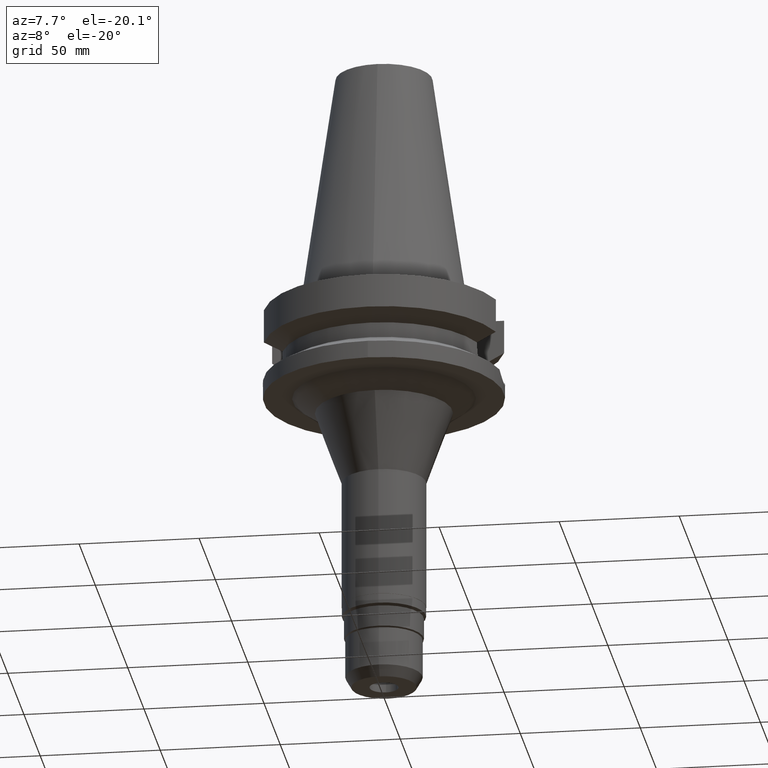
[diagram: clean part render]
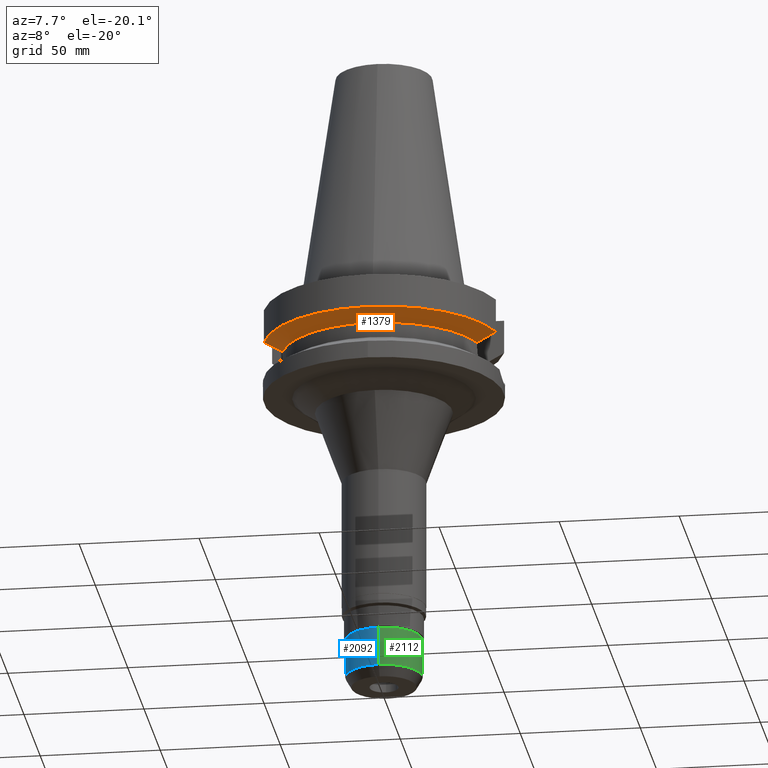
[diagram: same view with three faces highlighted in distinct colors, each labeled with its STEP entity id]
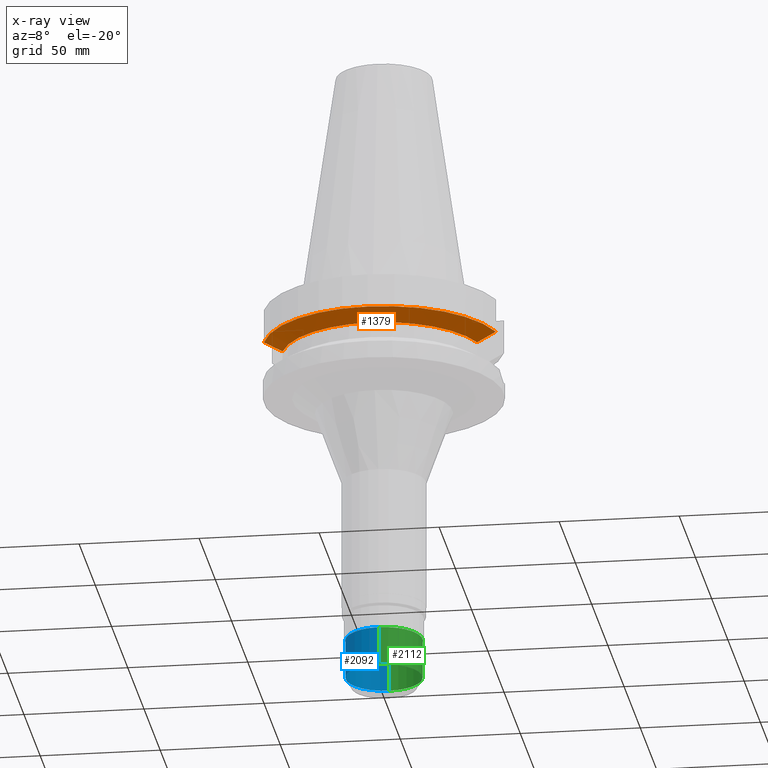
[diagram: x-ray of the same camera — body ghosted, the three highlighted faces saturated]
A machine part, auxiliary view with three faces highlighted in distinct colors.
The next image is the same camera in x-ray (body ghosted, the three faces saturated) — at least one of them is partly hidden behind the body in this view.
Their STEP definitions:

[orange] entity #1379 — the highlighted conical surface has half-angle 60 deg.
#282=CARTESIAN_POINT('',(-4.832056912814E1,-1.285000385728E1,
-1.566265768251E1));
#283=CARTESIAN_POINT('',(-4.745408729221E1,-1.285000385728E1,
-1.614611802317E1));
#284=CARTESIAN_POINT('',(-4.572065044709E1,-1.284999774293E1,
-1.711204883166E1));
#285=CARTESIAN_POINT('',(-4.311729623692E1,-1.285000211383E1,
-1.855526471611E1));
#286=CARTESIAN_POINT('',(-4.138011668042E1,-1.284999657245E1,
-1.951445436177E1));
#287=CARTESIAN_POINT('',(-4.051083297203E1,-1.284999657245E1,
-1.999284555870E1));
#311=CARTESIAN_POINT('',(0.E0,1.006319759054E-14,-1.566269223573E1));
#312=DIRECTION('',(0.E0,0.E0,1.E0));
#313=DIRECTION('',(-9.664114030784E-1,-2.57E-1,0.E0));
#314=AXIS2_PLACEMENT_3D('',#311,#312,#313);
#316=CARTESIAN_POINT('',(0.E0,1.006319759054E-14,-1.566269223573E1));
#317=DIRECTION('',(0.E0,0.E0,1.E0));
#318=DIRECTION('',(0.E0,-1.E0,0.E0));
#319=AXIS2_PLACEMENT_3D('',#316,#317,#318);
#321=CARTESIAN_POINT('',(0.E0,1.006319759054E-14,-1.999281925465E1));
#322=DIRECTION('',(0.E0,0.E0,-1.E0));
#323=DIRECTION('',(9.531960443487E-1,-3.023529411765E-1,0.E0));
#324=AXIS2_PLACEMENT_3D('',#321,#322,#323);
#326=CARTESIAN_POINT('',(0.E0,1.006319759054E-14,-1.999281925465E1));
#327=DIRECTION('',(0.E0,0.E0,-1.E0));
#328=DIRECTION('',(0.E0,-1.E0,0.E0));
#329=AXIS2_PLACEMENT_3D('',#326,#327,#328);
#339=CARTESIAN_POINT('',(4.051083297142E1,-1.284999657438E1,-1.999284554394E1));
#340=CARTESIAN_POINT('',(4.138011667043E1,-1.284999657438E1,-1.951445435220E1));
#341=CARTESIAN_POINT('',(4.311729628348E1,-1.285000211310E1,-1.855526479782E1));
#342=CARTESIAN_POINT('',(4.572065049586E1,-1.284999774259E1,-1.711204891799E1));
#343=CARTESIAN_POINT('',(4.745408728436E1,-1.285000385857E1,-1.614611801585E1));
#344=CARTESIAN_POINT('',(4.832056912780E1,-1.285000385857E1,-1.566265767101E1));
#877=CARTESIAN_POINT('',(-4.051083297203E1,-1.284999657245E1,
-1.999284555870E1));
#879=VERTEX_POINT('',#877);
#880=CARTESIAN_POINT('',(-4.832056912814E1,-1.285000385728E1,
-1.566265768251E1));
#881=VERTEX_POINT('',#880);
#883=CARTESIAN_POINT('',(4.051083188482E1,-1.285E1,-1.999281925465E1));
#884=CARTESIAN_POINT('',(0.E0,-4.25E1,-1.999281925465E1));
#885=VERTEX_POINT('',#883);
#886=VERTEX_POINT('',#884);
#944=VERTEX_POINT('',#344);
#945=CARTESIAN_POINT('',(0.E0,-5.E1,-1.566269223573E1));
#946=VERTEX_POINT('',#945);
#1363=CARTESIAN_POINT('',(0.E0,1.006319759054E-14,-1.782775574519E1));
#1364=DIRECTION('',(0.E0,0.E0,1.E0));
#1365=DIRECTION('',(0.E0,1.E0,0.E0));
#1366=AXIS2_PLACEMENT_3D('',#1363,#1364,#1365);
#1367=CONICAL_SURFACE('',#1366,4.625E1,6.E1);
#1368=ORIENTED_EDGE('',*,*,#1325,.F.);
#1370=ORIENTED_EDGE('',*,*,#1369,.T.);
#1372=ORIENTED_EDGE('',*,*,#1371,.T.);
#1374=ORIENTED_EDGE('',*,*,#1373,.F.);
#1375=ORIENTED_EDGE('',*,*,#1346,.T.);
#1376=ORIENTED_EDGE('',*,*,#1344,.T.);
#1377=EDGE_LOOP('',(#1368,#1370,#1372,#1374,#1375,#1376));
#1378=FACE_OUTER_BOUND('',#1377,.F.);
#288=B_SPLINE_CURVE_WITH_KNOTS('',3,(#282,#283,#284,#285,#286,#287),
.UNSPECIFIED.,.F.,.F.,(4,1,1,4),(0.E0,3.333333333333E-1,6.666666666667E-1,1.E0),
.UNSPECIFIED.);
#315=CIRCLE('',#314,5.E1);
#320=CIRCLE('',#319,5.E1);
#325=CIRCLE('',#324,4.25E1);
#330=CIRCLE('',#329,4.25E1);
#345=B_SPLINE_CURVE_WITH_KNOTS('',3,(#339,#340,#341,#342,#343,#344),
.UNSPECIFIED.,.F.,.F.,(4,1,1,4),(0.E0,3.333333333333E-1,6.666666666667E-1,1.E0),
.UNSPECIFIED.);
#1325=EDGE_CURVE('',#881,#879,#288,.T.);
#1344=EDGE_CURVE('',#886,#879,#330,.T.);
#1346=EDGE_CURVE('',#885,#886,#325,.T.);
#1369=EDGE_CURVE('',#881,#946,#315,.T.);
#1371=EDGE_CURVE('',#946,#944,#320,.T.);
#1373=EDGE_CURVE('',#885,#944,#345,.T.);
#1379=ADVANCED_FACE('',(#1378),#1367,.T.);

[blue] entity #2092 — the highlighted cylindrical surface (partial cylindrical patch) has radius 16 mm, axis along (0, 0, -1).
#622=CARTESIAN_POINT('',(0.E0,0.E0,-1.606698729811E2));
#623=DIRECTION('',(0.E0,0.E0,1.E0));
#624=DIRECTION('',(0.E0,1.E0,0.E0));
#625=AXIS2_PLACEMENT_3D('',#622,#623,#624);
#631=DIRECTION('',(0.E0,8.040871297633E-13,-1.E0));
#632=VECTOR('',#631,1.636987298109E1);
#633=CARTESIAN_POINT('',(0.E0,-1.6E1,-1.443E2));
#634=LINE('',#633,#632);
#635=DIRECTION('',(0.E0,-8.041956435460E-13,-1.E0));
#636=VECTOR('',#635,1.636987298109E1);
#637=CARTESIAN_POINT('',(0.E0,1.6E1,-1.443E2));
#638=LINE('',#637,#636);
#662=CARTESIAN_POINT('',(0.E0,0.E0,-1.443E2));
#663=DIRECTION('',(0.E0,0.E0,-1.E0));
#664=DIRECTION('',(0.E0,-1.E0,0.E0));
#665=AXIS2_PLACEMENT_3D('',#662,#663,#664);
#774=CARTESIAN_POINT('',(0.E0,1.6E1,-1.443E2));
#775=VERTEX_POINT('',#774);
#776=CARTESIAN_POINT('',(0.E0,-1.6E1,-1.443E2));
#777=VERTEX_POINT('',#776);
#778=CARTESIAN_POINT('',(0.E0,1.599999999999E1,-1.606698729811E2));
#779=VERTEX_POINT('',#778);
#780=CARTESIAN_POINT('',(0.E0,-1.599999999997E1,-1.606698729811E2));
#781=VERTEX_POINT('',#780);
#2078=CARTESIAN_POINT('',(0.E0,2.634705123686E-14,1.1514E2));
#2079=DIRECTION('',(0.E0,0.E0,-1.E0));
#2080=DIRECTION('',(0.E0,-1.E0,0.E0));
#2081=AXIS2_PLACEMENT_3D('',#2078,#2079,#2080);
#2082=CYLINDRICAL_SURFACE('',#2081,1.6E1);
#2084=ORIENTED_EDGE('',*,*,#2083,.F.);
#2086=ORIENTED_EDGE('',*,*,#2085,.F.);
#2088=ORIENTED_EDGE('',*,*,#2087,.T.);
#2089=ORIENTED_EDGE('',*,*,#2064,.F.);
#2090=EDGE_LOOP('',(#2084,#2086,#2088,#2089));
#2091=FACE_OUTER_BOUND('',#2090,.F.);
#626=CIRCLE('',#625,1.599999999997E1);
#666=CIRCLE('',#665,1.6E1);
#2064=EDGE_CURVE('',#779,#781,#626,.T.);
#2083=EDGE_CURVE('',#775,#779,#638,.T.);
#2085=EDGE_CURVE('',#777,#775,#666,.T.);
#2087=EDGE_CURVE('',#777,#781,#634,.T.);
#2092=ADVANCED_FACE('',(#2091),#2082,.T.);

[green] entity #2112 — the highlighted cylindrical surface (partial cylindrical patch) has radius 16 mm, axis along (0, 0, -1).
#617=CARTESIAN_POINT('',(0.E0,0.E0,-1.606698729811E2));
#618=DIRECTION('',(0.E0,0.E0,1.E0));
#619=DIRECTION('',(0.E0,-1.E0,0.E0));
#620=AXIS2_PLACEMENT_3D('',#617,#618,#619);
#631=DIRECTION('',(0.E0,8.040871297633E-13,-1.E0));
#632=VECTOR('',#631,1.636987298109E1);
#633=CARTESIAN_POINT('',(0.E0,-1.6E1,-1.443E2));
#634=LINE('',#633,#632);
#635=DIRECTION('',(0.E0,-8.041956435460E-13,-1.E0));
#636=VECTOR('',#635,1.636987298109E1);
#637=CARTESIAN_POINT('',(0.E0,1.6E1,-1.443E2));
#638=LINE('',#637,#636);
#643=CARTESIAN_POINT('',(0.E0,0.E0,-1.443E2));
#644=DIRECTION('',(0.E0,0.E0,-1.E0));
#645=DIRECTION('',(0.E0,1.E0,0.E0));
#646=AXIS2_PLACEMENT_3D('',#643,#644,#645);
#774=CARTESIAN_POINT('',(0.E0,1.6E1,-1.443E2));
#775=VERTEX_POINT('',#774);
#776=CARTESIAN_POINT('',(0.E0,-1.6E1,-1.443E2));
#777=VERTEX_POINT('',#776);
#778=CARTESIAN_POINT('',(0.E0,1.599999999999E1,-1.606698729811E2));
#779=VERTEX_POINT('',#778);
#780=CARTESIAN_POINT('',(0.E0,-1.599999999997E1,-1.606698729811E2));
#781=VERTEX_POINT('',#780);
#2100=CARTESIAN_POINT('',(0.E0,2.634705123686E-14,1.1514E2));
#2101=DIRECTION('',(0.E0,0.E0,-1.E0));
#2102=DIRECTION('',(0.E0,-1.E0,0.E0));
#2103=AXIS2_PLACEMENT_3D('',#2100,#2101,#2102);
#2104=CYLINDRICAL_SURFACE('',#2103,1.6E1);
#2105=ORIENTED_EDGE('',*,*,#2083,.T.);
#2106=ORIENTED_EDGE('',*,*,#2046,.F.);
#2107=ORIENTED_EDGE('',*,*,#2087,.F.);
#2109=ORIENTED_EDGE('',*,*,#2108,.F.);
#2110=EDGE_LOOP('',(#2105,#2106,#2107,#2109));
#2111=FACE_OUTER_BOUND('',#2110,.F.);
#621=CIRCLE('',#620,1.599999999997E1);
#647=CIRCLE('',#646,1.6E1);
#2046=EDGE_CURVE('',#781,#779,#621,.T.);
#2083=EDGE_CURVE('',#775,#779,#638,.T.);
#2087=EDGE_CURVE('',#777,#781,#634,.T.);
#2108=EDGE_CURVE('',#775,#777,#647,.T.);
#2112=ADVANCED_FACE('',(#2111),#2104,.T.);